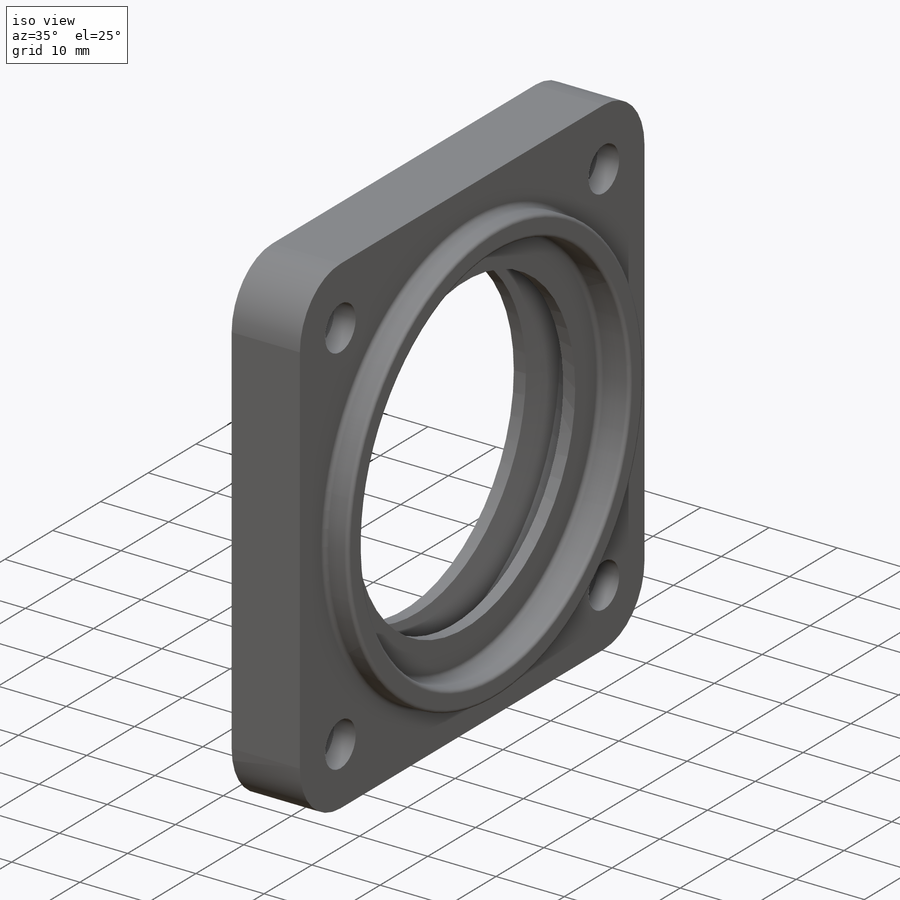
[diagram: iso view]
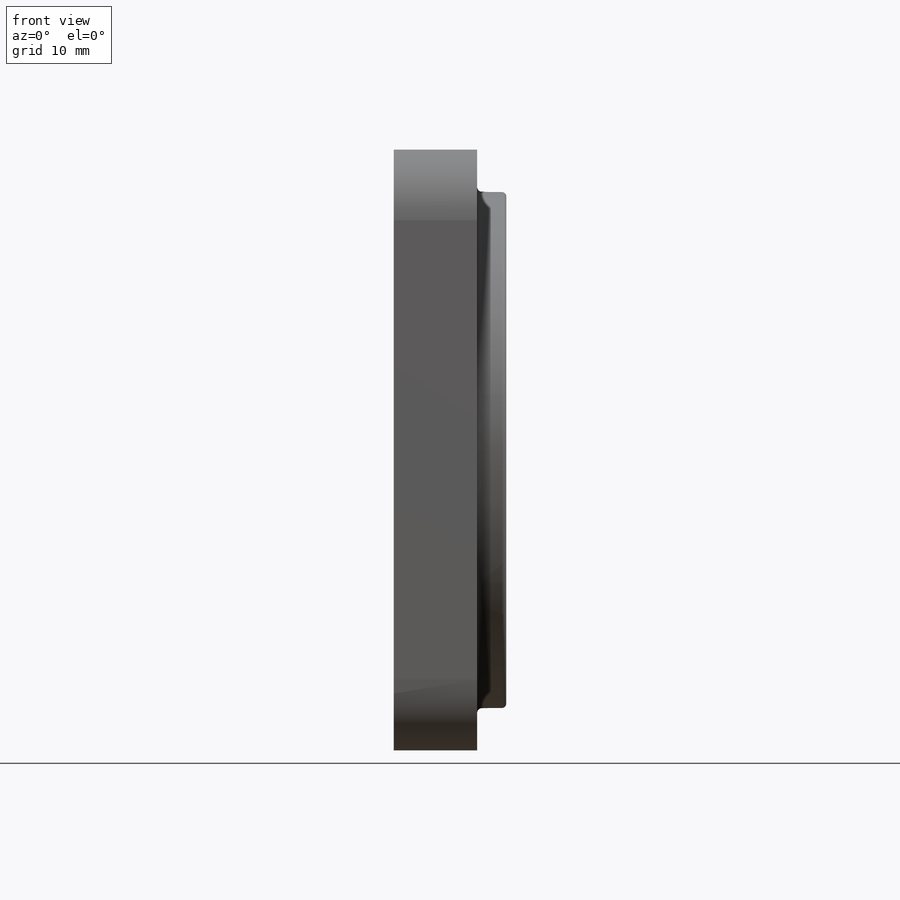
[diagram: front view]
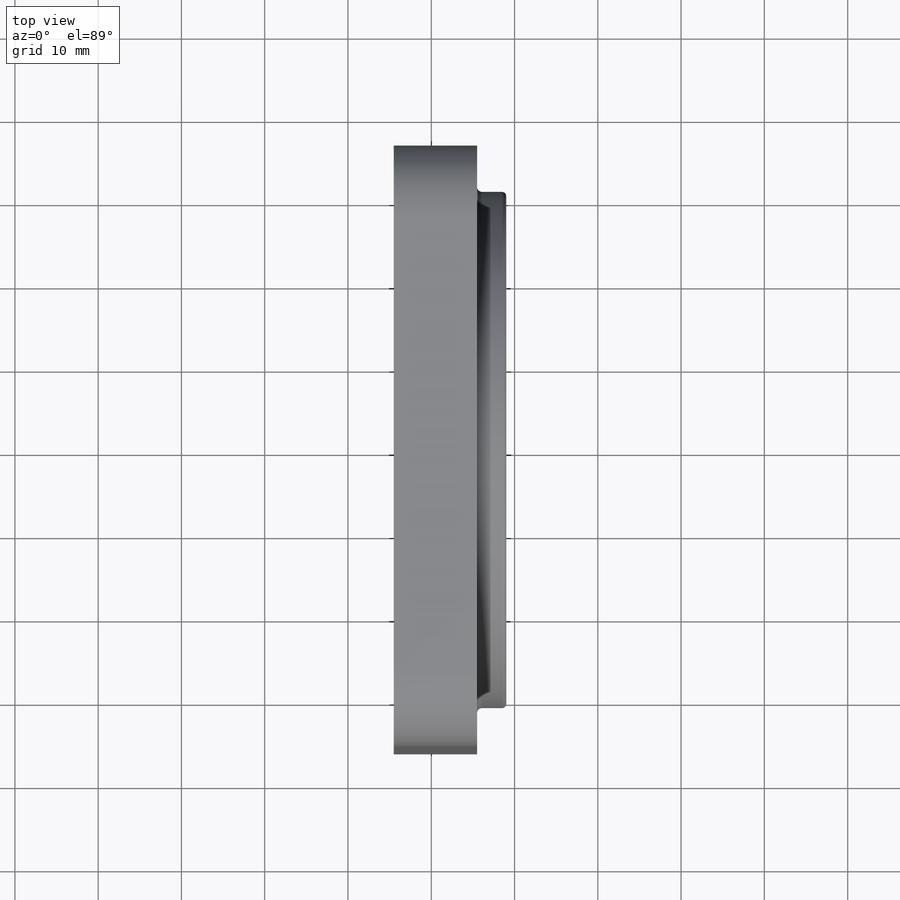
[diagram: top view]
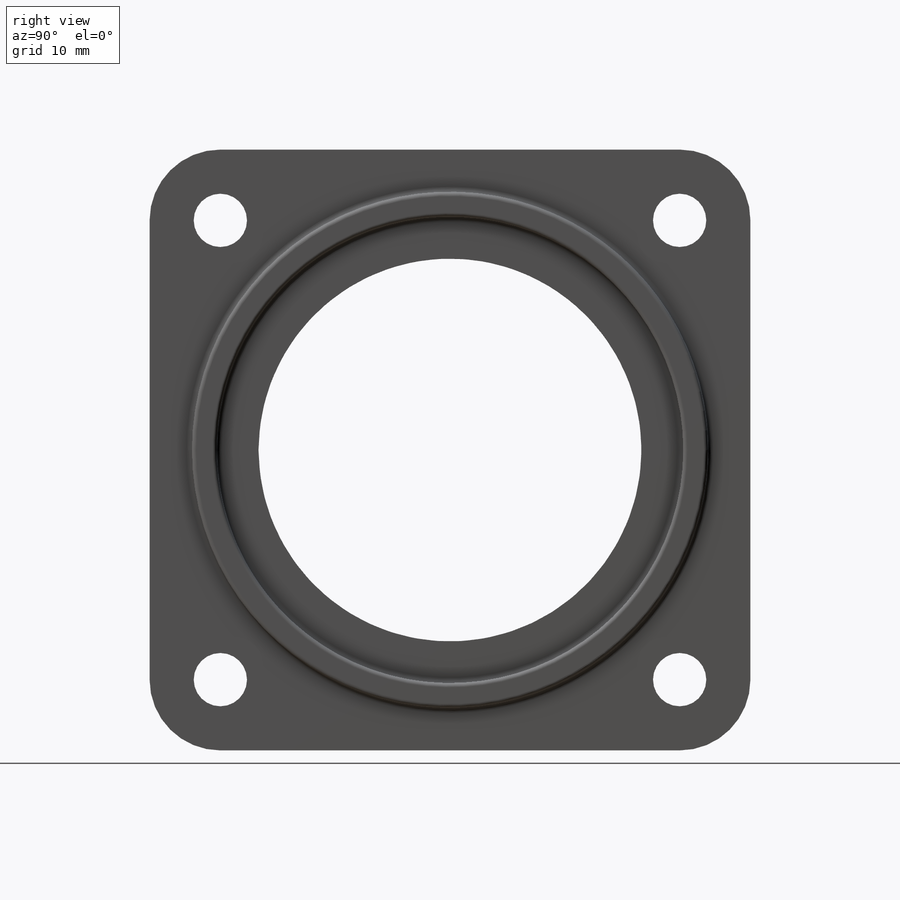
[diagram: right view]
SOLIDWORKS PART (.sldprt)
format: sldprt  version: not decoded by parser v0  size: 312,320 bytes
history: native  units: mm
features: sketch x6, material x4, fillet x3, cut_extrude x2, plane x1, revolve x1, hole x1 + 1 further entry (+10 scaffold rows collapsed)
feature tree (29):
  scaffold x10  (default folders/planes/origin — collapsed)
  material  "Сталь 3кп ГОСТ 535-88"
  material  "PTricksFreeParameters"
  material  "PTricksEqu"
  material  "PTricksFreeParameters"
  plane  "Спереди"
  "Начало координат"
  sketch  "Эскиз1"  dims[c1.D1=4.0mm c1.D2=~17.044737mm c2.D2=14.0deg c2.D3=6.0mm c2.D4=5.0mm c2.D5=12.5mm c2.D6=15.0mm c2.D7=46.0mm c2.D8=58.0mm c2.D9=56.0mm c2.D10=62.0mm c2.D11=95.0mm c2.D12=3.0mm]
  revolve  "Повернуть1"  Angle=360deg
  sketch  "Эскиз2"  dims[D1=78.0mm]
  hole  "Цековка для  болта с шестигранной головкой M61"  [1 undecoded]
  sketch  "Трехмерный эскиз1"
  sketch  "Эскиз3"  dims[hole-wizard template sketch: 41 standard entries collapsed; hole parameters kept: c12.Диаметр сквозного отверстия=6.4mm c12.Глубина сквозного отверстия=15.0mm c12.Диаметр цековки=11.0mm c12.Глубина цековки=6.8mm]
  sketch  "Эскиз4"  dims[D1=17.0mm]
  cut_extrude  "Вытянуть1"  [1 undecoded]
  sketch  "Эскиз5"  dims[D1=0.0mm]
  cut_extrude  "Вытянуть2"  Depth=1.5mm
  fillet  "Скругление1"  Radius=0.6mm
  fillet  "Скругление2"  Radius=0.5mm
  fillet  "Скругление3"  Radius=0.6mm
decode coverage: 10 of 13 modeling features carry decoded parameters; 1 rows unclassified (native names shown)
note: ~ marks probable driven/reference dimensions
note: 2 parameter values undecoded
note: suppression state not decoded; provenance and decode notes live in map.json
